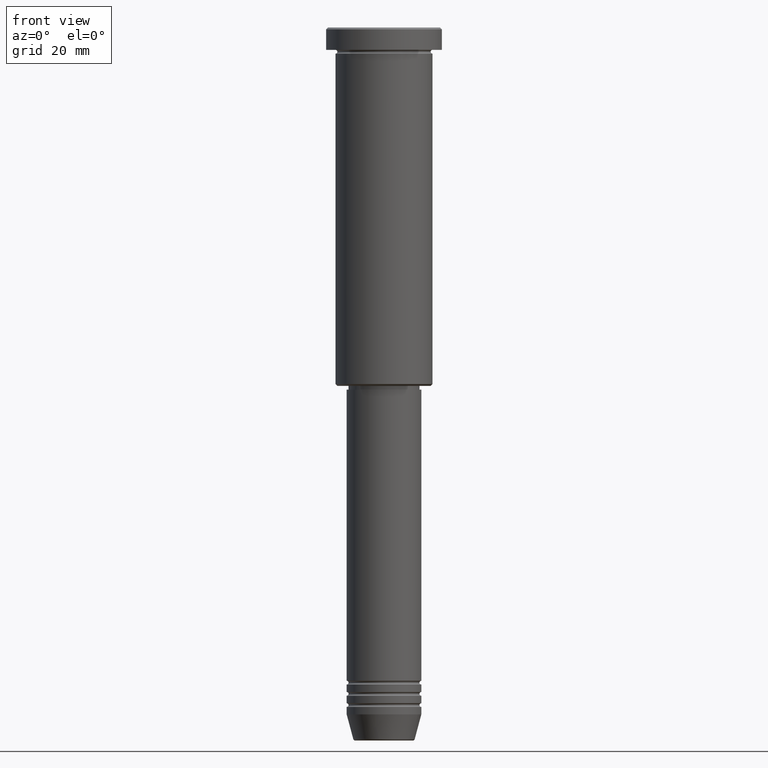
[diagram: clean part render]
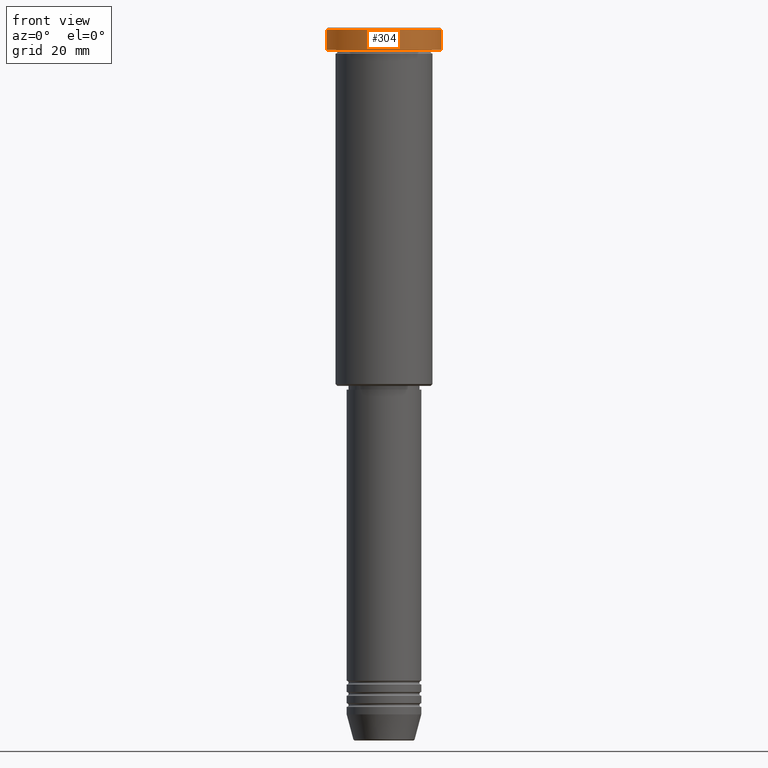
[diagram: same view with one face highlighted and labeled with its STEP entity id]
A machine part, front view. The second image highlights one B-rep face of the part: STEP entity #304.
In plain terms, the highlighted cylindrical surface (partial cylindrical patch) has radius 15.5 mm, axis along (-0, -0, 1).
Its self-contained STEP definition (entity closure, byte-faithful):
#46 = VECTOR ( 'NONE', #895, 1000.000000000000000 ) ;
#70 = EDGE_CURVE ( 'NONE', #1181, #1170, #180, .T. ) ;
#79 = CIRCLE ( 'NONE', #175, 15.50000000000000000 ) ;
#165 = LINE ( 'NONE', #614, #46 ) ;
#166 = EDGE_LOOP ( 'NONE', ( #406, #207, #284, #548 ) ) ;
#175 = AXIS2_PLACEMENT_3D ( 'NONE', #674, #498, #570 ) ;
#180 = CIRCLE ( 'NONE', #835, 15.50000000000000000 ) ;
#207 = ORIENTED_EDGE ( 'NONE', *, *, #70, .T. ) ;
#284 = ORIENTED_EDGE ( 'NONE', *, *, #762, .T. ) ;
#298 = VERTEX_POINT ( 'NONE', #461 ) ;
#304 = ADVANCED_FACE ( 'NONE', ( #1054 ), #506, .T. ) ;
#323 = CARTESIAN_POINT ( 'NONE',  ( 15.50000000000000000, 0.000000000000000000, -5.999999999999995559 ) ) ;
#331 = VECTOR ( 'NONE', #526, 1000.000000000000000 ) ;
#406 = ORIENTED_EDGE ( 'NONE', *, *, #1122, .F. ) ;
#422 = VERTEX_POINT ( 'NONE', #1171 ) ;
#461 = CARTESIAN_POINT ( 'NONE',  ( -15.50000000000000000, 1.898202538678397557E-15, -0.5000000000000125455 ) ) ;
#498 = DIRECTION ( 'NONE',  ( 0.000000000000000000, 0.000000000000000000, -1.000000000000000000 ) ) ;
#506 = CYLINDRICAL_SURFACE ( 'NONE', #1067, 15.50000000000000000 ) ;
#513 = CARTESIAN_POINT ( 'NONE',  ( 0.000000000000000000, 0.000000000000000000, -5.999999999999995559 ) ) ;
#526 = DIRECTION ( 'NONE',  ( -0.000000000000000000, -0.000000000000000000, 1.000000000000000000 ) ) ;
#548 = ORIENTED_EDGE ( 'NONE', *, *, #605, .T. ) ;
#570 = DIRECTION ( 'NONE',  ( 1.000000000000000000, 0.000000000000000000, 0.000000000000000000 ) ) ;
#605 = EDGE_CURVE ( 'NONE', #422, #298, #79, .T. ) ;
#614 = CARTESIAN_POINT ( 'NONE',  ( 15.50000000000000000, 0.000000000000000000, 0.000000000000000000 ) ) ;
#674 = CARTESIAN_POINT ( 'NONE',  ( 0.000000000000000000, 0.000000000000000000, -0.5000000000000125455 ) ) ;
#762 = EDGE_CURVE ( 'NONE', #1170, #422, #165, .T. ) ;
#788 = DIRECTION ( 'NONE',  ( 1.000000000000000000, 0.000000000000000000, 0.000000000000000000 ) ) ;
#795 = CARTESIAN_POINT ( 'NONE',  ( -15.50000000000000000, 1.898202538678397557E-15, 0.000000000000000000 ) ) ;
#835 = AXIS2_PLACEMENT_3D ( 'NONE', #513, #870, #788 ) ;
#843 = DIRECTION ( 'NONE',  ( -0.000000000000000000, -0.000000000000000000, 1.000000000000000000 ) ) ;
#870 = DIRECTION ( 'NONE',  ( -0.000000000000000000, -0.000000000000000000, 1.000000000000000000 ) ) ;
#873 = CARTESIAN_POINT ( 'NONE',  ( 0.000000000000000000, 0.000000000000000000, 0.000000000000000000 ) ) ;
#895 = DIRECTION ( 'NONE',  ( -0.000000000000000000, -0.000000000000000000, 1.000000000000000000 ) ) ;
#1054 = FACE_OUTER_BOUND ( 'NONE', #166, .T. ) ;
#1056 = CARTESIAN_POINT ( 'NONE',  ( -15.50000000000000000, 1.898202538678397557E-15, -5.999999999999995559 ) ) ;
#1067 = AXIS2_PLACEMENT_3D ( 'NONE', #873, #843, #1102 ) ;
#1102 = DIRECTION ( 'NONE',  ( 1.000000000000000000, 0.000000000000000000, 0.000000000000000000 ) ) ;
#1122 = EDGE_CURVE ( 'NONE', #1181, #298, #1141, .T. ) ;
#1141 = LINE ( 'NONE', #795, #331 ) ;
#1170 = VERTEX_POINT ( 'NONE', #323 ) ;
#1171 = CARTESIAN_POINT ( 'NONE',  ( 15.50000000000000000, 0.000000000000000000, -0.5000000000000125455 ) ) ;
#1181 = VERTEX_POINT ( 'NONE', #1056 ) ;